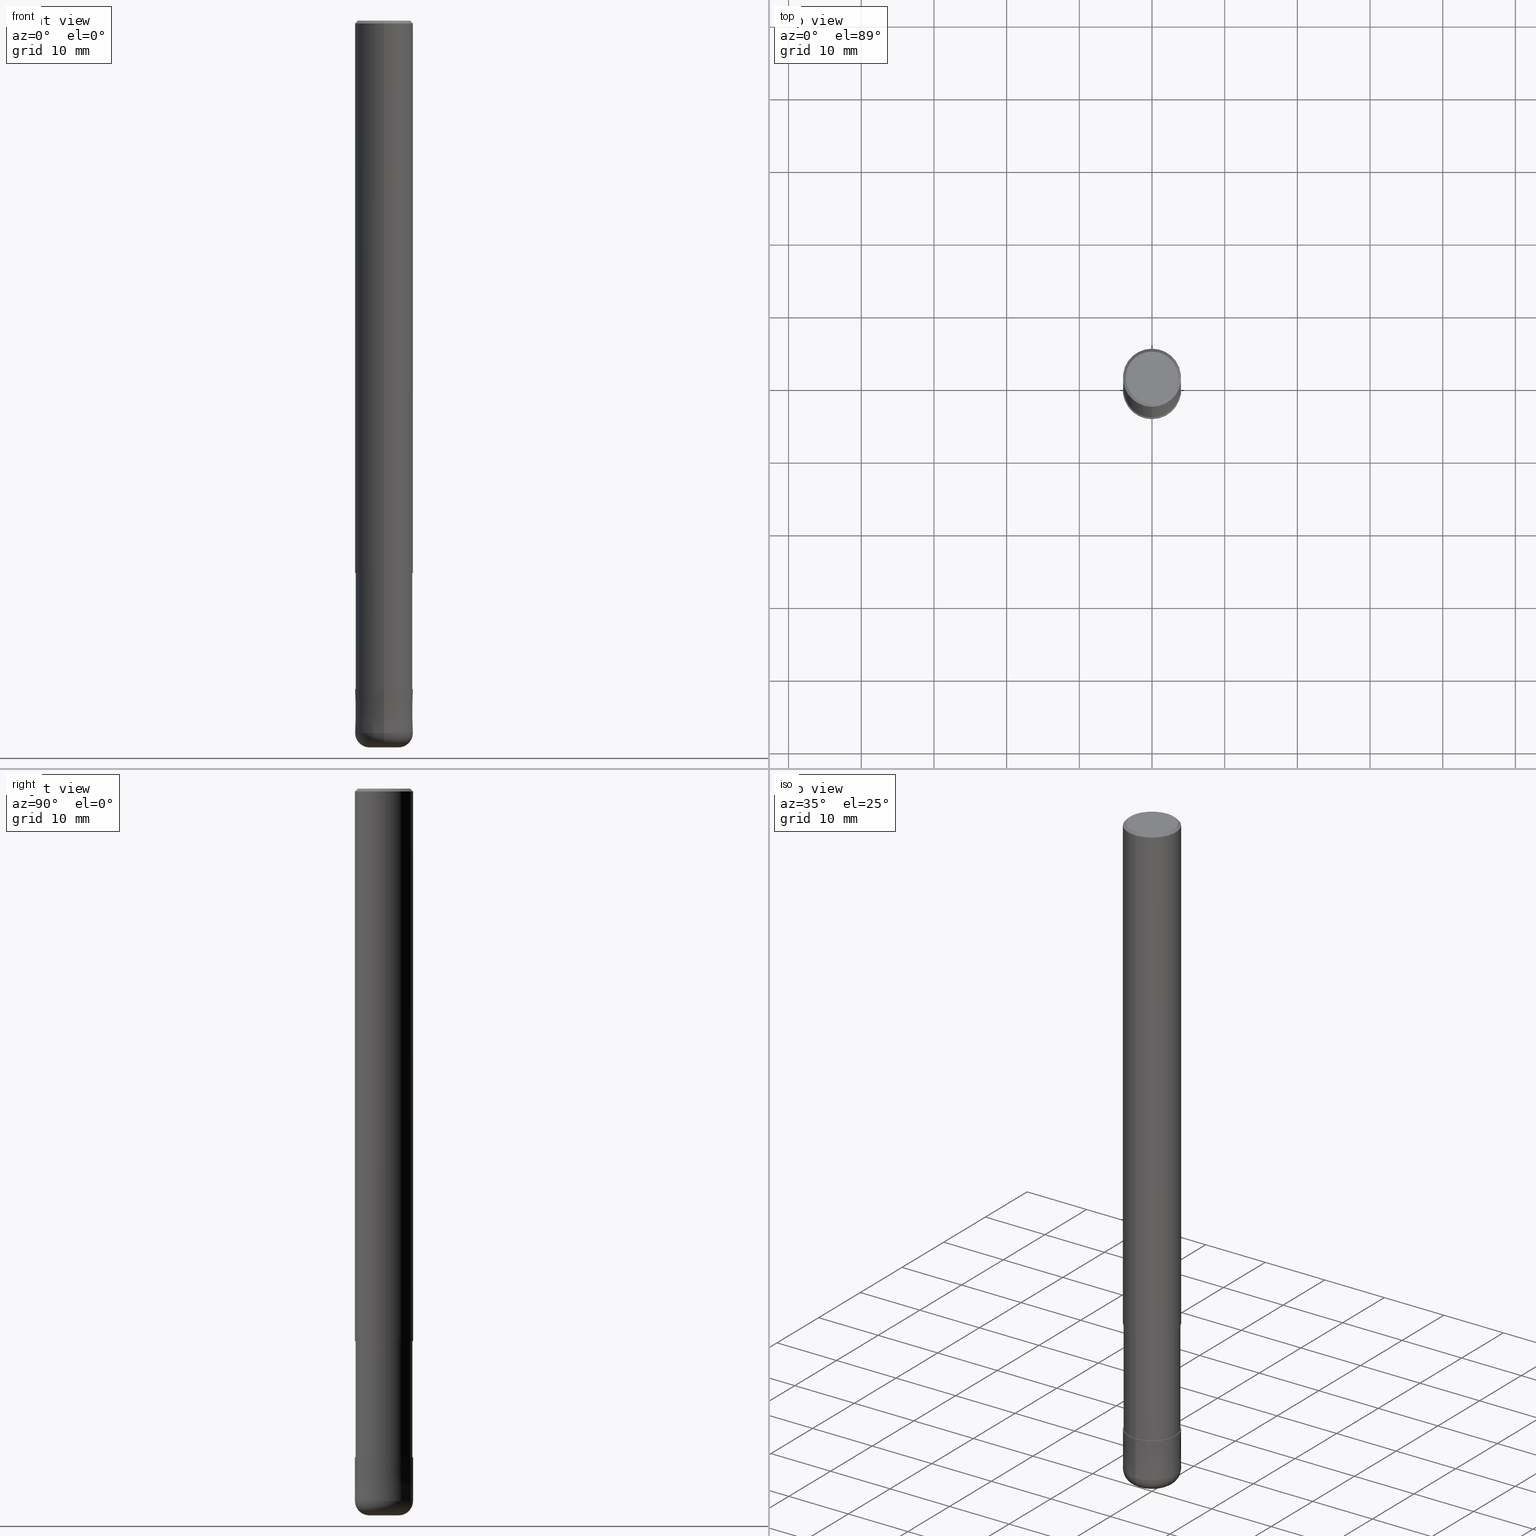
[diagram: canonical four-view strip — front | top / right | iso, engineering-drawing reading convention]
A machine part, canonical four-view strip (front | top / right | iso — engineering-drawing reading convention). The complete STEP part file that produces these views, byte-faithful:
ISO-10303-21;
HEADER;
FILE_DESCRIPTION(('no description'),'unknown implementation level');
FILE_NAME('CRRS4080-20-24-Huellk.stp','  ',('CIMSOURCE GmbH'),('CADClick - KiM GmbH - www.kimweb.de'),'unknown preprocess','ACIS','unknown authorization');
FILE_SCHEMA(('automotive_design'));
ENDSEC;
DATA;
#1=MECHANICAL_DESIGN_GEOMETRIC_PRESENTATION_REPRESENTATION(' ',(#14,#15,#16,#17,#18,#19,#20,#21,#22,#23,#24,#25,#26,#27,#28,#29,#30,#31,#32,#33,#34,#35,#36,#37,#38,#39,#40,#41,#42,#43,#44,#45,#46,#47,#48,#49,#50,#51,#52,#53,#54,#55,#56,#57,#58,#59,#60,#61,#62,#63,#64,#65,#66,#67,#68,#69,#70,#71,#72),#10);
#2=PRODUCT_DEFINITION_CONTEXT('',#73,'design');
#3=APPLICATION_PROTOCOL_DEFINITION('INTERNATIONAL STANDARD','automotive_design',1994,#73);
#4=PRODUCT_CATEGORY_RELATIONSHIP('NONE','NONE',#74,#75);
#5=SHAPE_DEFINITION_REPRESENTATION(#76,#77);
#6=PRODUCT_DEFINITION_CONTEXT('',#78,'design');
#7=APPLICATION_PROTOCOL_DEFINITION('INTERNATIONAL STANDARD','automotive_design',1994,#78);
#8=PRODUCT_CATEGORY_RELATIONSHIP('NONE','NONE',#79,#80);
#9=SHAPE_DEFINITION_REPRESENTATION(#81,#82);
#10= (GEOMETRIC_REPRESENTATION_CONTEXT(3)GLOBAL_UNCERTAINTY_ASSIGNED_CONTEXT((#85))GLOBAL_UNIT_ASSIGNED_CONTEXT((#87,#88,#89))REPRESENTATION_CONTEXT('NONE','WORKSPACE'));
#14=STYLED_ITEM('',(#91),#92);
#15=STYLED_ITEM('',(#93),#94);
#16=STYLED_ITEM('',(#95),#96);
#17=STYLED_ITEM('',(#97),#98);
#18=STYLED_ITEM('',(#99),#100);
#19=STYLED_ITEM('',(#101),#102);
#20=STYLED_ITEM('',(#103),#104);
#21=STYLED_ITEM('',(#105),#106);
#22=STYLED_ITEM('',(#107),#108);
#23=STYLED_ITEM('',(#109),#110);
#24=STYLED_ITEM('',(#111),#112);
#25=STYLED_ITEM('',(#113),#114);
#26=STYLED_ITEM('',(#115),#116);
#27=STYLED_ITEM('',(#117),#118);
#28=STYLED_ITEM('',(#119),#120);
#29=STYLED_ITEM('',(#121),#122);
#30=STYLED_ITEM('',(#123),#124);
#31=STYLED_ITEM('',(#125),#126);
#32=STYLED_ITEM('',(#127),#128);
#33=STYLED_ITEM('',(#129),#130);
#34=STYLED_ITEM('',(#131),#132);
#35=STYLED_ITEM('',(#133),#134);
#36=STYLED_ITEM('',(#135),#136);
#37=STYLED_ITEM('',(#137),#138);
#38=STYLED_ITEM('',(#139),#140);
#39=STYLED_ITEM('',(#141),#142);
#40=STYLED_ITEM('',(#143),#144);
#41=STYLED_ITEM('',(#145),#146);
#42=STYLED_ITEM('',(#147),#148);
#43=STYLED_ITEM('',(#149),#150);
#44=STYLED_ITEM('',(#151),#152);
#45=STYLED_ITEM('',(#153),#154);
#46=STYLED_ITEM('',(#155),#156);
#47=STYLED_ITEM('',(#157),#158);
#48=STYLED_ITEM('',(#159),#160);
#49=STYLED_ITEM('',(#161),#162);
#50=STYLED_ITEM('',(#163),#164);
#51=STYLED_ITEM('',(#165),#166);
#52=STYLED_ITEM('',(#167),#168);
#53=STYLED_ITEM('',(#169),#170);
#54=STYLED_ITEM('',(#171),#172);
#55=STYLED_ITEM('',(#173),#174);
#56=STYLED_ITEM('',(#175),#176);
#57=STYLED_ITEM('',(#177),#178);
#58=STYLED_ITEM('',(#179),#180);
#59=STYLED_ITEM('',(#181),#182);
#60=STYLED_ITEM('',(#183),#184);
#61=STYLED_ITEM('',(#185),#186);
#62=STYLED_ITEM('',(#187),#188);
#63=STYLED_ITEM('',(#189),#190);
#64=STYLED_ITEM('',(#191),#192);
#65=STYLED_ITEM('',(#193),#194);
#66=STYLED_ITEM('',(#195),#196);
#67=STYLED_ITEM('',(#197),#198);
#68=STYLED_ITEM('',(#199),#200);
#69=STYLED_ITEM('',(#201),#202);
#70=STYLED_ITEM('',(#203),#204);
#71=STYLED_ITEM('',(#205),#206);
#72=STYLED_ITEM('',(#207),#208);
#73=APPLICATION_CONTEXT(' ');
#74=PRODUCT_CATEGORY('part','NONE');
#75=PRODUCT_RELATED_PRODUCT_CATEGORY('detail',' ',(#209));
#76=PRODUCT_DEFINITION_SHAPE('NONE','NONE',#210);
#77=ADVANCED_BREP_SHAPE_REPRESENTATION('1',(#194,#211),#10);
#78=APPLICATION_CONTEXT(' ');
#79=PRODUCT_CATEGORY('part','NONE');
#80=PRODUCT_RELATED_PRODUCT_CATEGORY('detail',' ',(#212));
#81=PRODUCT_DEFINITION_SHAPE('NONE','NONE',#213);
#82=ADVANCED_BREP_SHAPE_REPRESENTATION('2',(#108,#214),#10);
#85=UNCERTAINTY_MEASURE_WITH_UNIT(LENGTH_MEASURE(1.0E-006),#87,'','');
#87= (CONVERSION_BASED_UNIT('MILLIMETRE',#217)LENGTH_UNIT()NAMED_UNIT(#220));
#88= (NAMED_UNIT(#222)PLANE_ANGLE_UNIT()SI_UNIT($,.RADIAN.));
#89= (NAMED_UNIT(#222)SOLID_ANGLE_UNIT()SI_UNIT($,.STERADIAN.));
#91=PRESENTATION_STYLE_ASSIGNMENT((#228));
#92=VERTEX_POINT('',#229);
#93=PRESENTATION_STYLE_ASSIGNMENT((#230));
#94=EDGE_CURVE('',#158,#198,#231,.T.);
#95=PRESENTATION_STYLE_ASSIGNMENT((#232));
#96=VERTEX_POINT('',#233);
#97=PRESENTATION_STYLE_ASSIGNMENT((#234));
#98=EDGE_CURVE('',#96,#198,#235,.T.);
#99=PRESENTATION_STYLE_ASSIGNMENT((#236));
#100=EDGE_CURVE('',#158,#152,#237,.T.);
#101=PRESENTATION_STYLE_ASSIGNMENT((#238));
#102=EDGE_CURVE('',#162,#178,#239,.T.);
#103=PRESENTATION_STYLE_ASSIGNMENT((#240));
#104=ADVANCED_FACE('',(#241),#242,.T.);
#105=PRESENTATION_STYLE_ASSIGNMENT((#243));
#106=ADVANCED_FACE('',(#244),#245,.T.);
#107=PRESENTATION_STYLE_ASSIGNMENT((#246));
#108=MANIFOLD_SOLID_BREP('2',#247);
#109=PRESENTATION_STYLE_ASSIGNMENT((#248));
#110=ADVANCED_FACE('',(#249),#250,.T.);
#111=PRESENTATION_STYLE_ASSIGNMENT((#251));
#112=ADVANCED_FACE('',(#252),#253,.T.);
#113=PRESENTATION_STYLE_ASSIGNMENT((#254));
#114=EDGE_CURVE('',#152,#96,#255,.T.);
#115=PRESENTATION_STYLE_ASSIGNMENT((#256));
#116=EDGE_CURVE('',#124,#176,#257,.T.);
#117=PRESENTATION_STYLE_ASSIGNMENT((#258));
#118=ADVANCED_FACE('',(#259),#260,.T.);
#119=PRESENTATION_STYLE_ASSIGNMENT((#261));
#120=ADVANCED_FACE('',(#262),#263,.T.);
#121=PRESENTATION_STYLE_ASSIGNMENT((#264));
#122=VERTEX_POINT('',#265);
#123=PRESENTATION_STYLE_ASSIGNMENT((#266));
#124=VERTEX_POINT('',#267);
#125=PRESENTATION_STYLE_ASSIGNMENT((#268));
#126=EDGE_CURVE('',#92,#176,#269,.T.);
#127=PRESENTATION_STYLE_ASSIGNMENT((#270));
#128=EDGE_CURVE('',#124,#192,#271,.T.);
#129=PRESENTATION_STYLE_ASSIGNMENT((#272));
#130=EDGE_CURVE('',#184,#122,#273,.T.);
#131=PRESENTATION_STYLE_ASSIGNMENT((#274));
#132=EDGE_CURVE('',#192,#92,#275,.T.);
#133=PRESENTATION_STYLE_ASSIGNMENT((#276));
#134=EDGE_CURVE('',#124,#196,#277,.T.);
#135=PRESENTATION_STYLE_ASSIGNMENT((#278));
#136=EDGE_CURVE('',#196,#150,#279,.T.);
#137=PRESENTATION_STYLE_ASSIGNMENT((#280));
#138=EDGE_CURVE('',#142,#158,#281,.T.);
#139=PRESENTATION_STYLE_ASSIGNMENT((#282));
#140=ADVANCED_FACE('',(#283),#284,.T.);
#141=PRESENTATION_STYLE_ASSIGNMENT((#285));
#142=VERTEX_POINT('',#286);
#143=PRESENTATION_STYLE_ASSIGNMENT((#287));
#144=VERTEX_POINT('',#288);
#145=PRESENTATION_STYLE_ASSIGNMENT((#289));
#146=EDGE_CURVE('',#122,#184,#290,.T.);
#147=PRESENTATION_STYLE_ASSIGNMENT((#291));
#148=EDGE_CURVE('',#162,#184,#292,.T.);
#149=PRESENTATION_STYLE_ASSIGNMENT((#293));
#150=VERTEX_POINT('',#294);
#151=PRESENTATION_STYLE_ASSIGNMENT((#295));
#152=VERTEX_POINT('',#296);
#153=PRESENTATION_STYLE_ASSIGNMENT((#297));
#154=EDGE_CURVE('',#176,#124,#298,.T.);
#155=PRESENTATION_STYLE_ASSIGNMENT((#299));
#156=EDGE_CURVE('',#198,#144,#300,.T.);
#157=PRESENTATION_STYLE_ASSIGNMENT((#301));
#158=VERTEX_POINT('',#302);
#159=PRESENTATION_STYLE_ASSIGNMENT((#303));
#160=ADVANCED_FACE('',(#304),#305,.T.);
#161=PRESENTATION_STYLE_ASSIGNMENT((#306));
#162=VERTEX_POINT('',#307);
#163=PRESENTATION_STYLE_ASSIGNMENT((#308));
#164=EDGE_CURVE('',#142,#144,#309,.T.);
#165=PRESENTATION_STYLE_ASSIGNMENT((#310));
#166=EDGE_CURVE('',#92,#192,#311,.T.);
#167=PRESENTATION_STYLE_ASSIGNMENT((#312));
#168=EDGE_CURVE('',#198,#158,#313,.T.);
#169=PRESENTATION_STYLE_ASSIGNMENT((#314));
#170=ADVANCED_FACE('',(#315),#316,.T.);
#171=PRESENTATION_STYLE_ASSIGNMENT((#317));
#172=EDGE_CURVE('',#150,#176,#318,.T.);
#173=PRESENTATION_STYLE_ASSIGNMENT((#319));
#174=EDGE_CURVE('',#178,#162,#320,.T.);
#175=PRESENTATION_STYLE_ASSIGNMENT((#321));
#176=VERTEX_POINT('',#322);
#177=PRESENTATION_STYLE_ASSIGNMENT((#323));
#178=VERTEX_POINT('',#324);
#179=PRESENTATION_STYLE_ASSIGNMENT((#325));
#180=EDGE_CURVE('',#122,#178,#326,.T.);
#181=PRESENTATION_STYLE_ASSIGNMENT((#327));
#182=ADVANCED_FACE('',(#328),#329,.T.);
#183=PRESENTATION_STYLE_ASSIGNMENT((#330));
#184=VERTEX_POINT('',#331);
#185=PRESENTATION_STYLE_ASSIGNMENT((#332));
#186=EDGE_CURVE('',#96,#152,#333,.T.);
#187=PRESENTATION_STYLE_ASSIGNMENT((#334));
#188=ADVANCED_FACE('',(#335),#336,.T.);
#189=PRESENTATION_STYLE_ASSIGNMENT((#337));
#190=ADVANCED_FACE('',(#338),#339,.T.);
#191=PRESENTATION_STYLE_ASSIGNMENT((#340));
#192=VERTEX_POINT('',#341);
#193=PRESENTATION_STYLE_ASSIGNMENT((#342));
#194=MANIFOLD_SOLID_BREP('1',#343);
#195=PRESENTATION_STYLE_ASSIGNMENT((#344));
#196=VERTEX_POINT('',#345);
#197=PRESENTATION_STYLE_ASSIGNMENT((#346));
#198=VERTEX_POINT('',#347);
#199=PRESENTATION_STYLE_ASSIGNMENT((#348));
#200=EDGE_CURVE('',#150,#196,#349,.T.);
#201=PRESENTATION_STYLE_ASSIGNMENT((#350));
#202=ADVANCED_FACE('',(#351),#352,.T.);
#203=PRESENTATION_STYLE_ASSIGNMENT((#353));
#204=ADVANCED_FACE('',(#354),#355,.T.);
#205=PRESENTATION_STYLE_ASSIGNMENT((#356));
#206=EDGE_CURVE('',#144,#142,#357,.T.);
#207=PRESENTATION_STYLE_ASSIGNMENT((#358));
#208=ADVANCED_FACE('',(#359,#360),#361,.T.);
#209=PRODUCT('1','1','PART-1-DESC',(#362));
#210=PRODUCT_DEFINITION('NONE','NONE',#363,#2);
#211=AXIS2_PLACEMENT_3D('',#364,#365,#366);
#212=PRODUCT('2','2','PART-2-DESC',(#367));
#213=PRODUCT_DEFINITION('NONE','NONE',#368,#6);
#214=AXIS2_PLACEMENT_3D('',#369,#370,#371);
#217=LENGTH_MEASURE_WITH_UNIT(LENGTH_MEASURE(1.0),#372);
#220=DIMENSIONAL_EXPONENTS(1.0,0.0,0.0,0.0,0.0,0.0,0.0);
#222=DIMENSIONAL_EXPONENTS(0.0,0.0,0.0,0.0,0.0,0.0,0.0);
#228=POINT_STYLE(' ',#373,POSITIVE_LENGTH_MEASURE(1.0E-006),#374);
#229=CARTESIAN_POINT('',(0.0,3.9999,-92.0));
#230=CURVE_STYLE('',#375,POSITIVE_LENGTH_MEASURE(1.0E-006),#376);
#231=CIRCLE('',#377,4.0);
#232=POINT_STYLE(' ',#378,POSITIVE_LENGTH_MEASURE(1.0E-006),#379);
#233=CARTESIAN_POINT('',(0.0,3.6,0.0));
#234=CURVE_STYLE('',#380,POSITIVE_LENGTH_MEASURE(1.0E-006),#381);
#235=LINE('',#382,#383);
#236=CURVE_STYLE('',#384,POSITIVE_LENGTH_MEASURE(1.0E-006),#385);
#237=LINE('',#386,#387);
#238=CURVE_STYLE('',#388,POSITIVE_LENGTH_MEASURE(1.0E-006),#389);
#239=CIRCLE('',#390,3.90995);
#240=SURFACE_STYLE_USAGE(.BOTH.,#391);
#241=FACE_OUTER_BOUND('',#392,.T.);
#242=CONICAL_SURFACE('',#393,3.8,0.785398163397441);
#243=SURFACE_STYLE_USAGE(.BOTH.,#394);
#244=FACE_OUTER_BOUND('',#395,.T.);
#245=TOROIDAL_SURFACE('',#396,2.0,2.0);
#246=SURFACE_STYLE_USAGE(.BOTH.,#397);
#247=CLOSED_SHELL('',(#106,#118,#188,#120,#112,#190));
#248=SURFACE_STYLE_USAGE(.BOTH.,#398);
#249=FACE_OUTER_BOUND('',#399,.T.);
#250=CYLINDRICAL_SURFACE('',#400,3.90995);
#251=SURFACE_STYLE_USAGE(.BOTH.,#401);
#252=FACE_OUTER_BOUND('',#402,.T.);
#253=TOROIDAL_SURFACE('',#403,2.0,2.0);
#254=CURVE_STYLE('',#404,POSITIVE_LENGTH_MEASURE(1.0E-006),#405);
#255=CIRCLE('',#406,3.6);
#256=CURVE_STYLE('',#407,POSITIVE_LENGTH_MEASURE(1.0E-006),#408);
#257=CIRCLE('',#409,4.0);
#258=SURFACE_STYLE_USAGE(.BOTH.,#410);
#259=FACE_OUTER_BOUND('',#411,.T.);
#260=CONICAL_SURFACE('',#412,3.99995,1.66666666651586E-005);
#261=SURFACE_STYLE_USAGE(.BOTH.,#413);
#262=FACE_OUTER_BOUND('',#414,.T.);
#263=CONICAL_SURFACE('',#415,3.99995,1.66666666651586E-005);
#264=POINT_STYLE(' ',#416,POSITIVE_LENGTH_MEASURE(1.0E-006),#417);
#265=CARTESIAN_POINT('',(4.7881496131278E-016,-3.90995,-92.0));
#266=POINT_STYLE(' ',#418,POSITIVE_LENGTH_MEASURE(1.0E-006),#419);
#267=CARTESIAN_POINT('',(4.89842541528951E-016,-4.0,-98.0));
#268=CURVE_STYLE('',#420,POSITIVE_LENGTH_MEASURE(1.0E-006),#421);
#269=LINE('',#422,#423);
#270=CURVE_STYLE('',#424,POSITIVE_LENGTH_MEASURE(1.0E-006),#425);
#271=LINE('',#426,#427);
#272=CURVE_STYLE('',#428,POSITIVE_LENGTH_MEASURE(1.0E-006),#429);
#273=CIRCLE('',#430,3.90995);
#274=CURVE_STYLE('',#431,POSITIVE_LENGTH_MEASURE(1.0E-006),#432);
#275=CIRCLE('',#433,3.9999);
#276=CURVE_STYLE('',#434,POSITIVE_LENGTH_MEASURE(1.0E-006),#435);
#277=CIRCLE('',#436,2.0);
#278=CURVE_STYLE('',#437,POSITIVE_LENGTH_MEASURE(1.0E-006),#438);
#279=CIRCLE('',#439,2.0);
#280=CURVE_STYLE('',#440,POSITIVE_LENGTH_MEASURE(1.0E-006),#441);
#281=LINE('',#442,#443);
#282=SURFACE_STYLE_USAGE(.BOTH.,#444);
#283=FACE_OUTER_BOUND('',#445,.T.);
#284=CYLINDRICAL_SURFACE('',#446,4.0);
#285=POINT_STYLE(' ',#447,POSITIVE_LENGTH_MEASURE(1.0E-006),#448);
#286=CARTESIAN_POINT('',(4.89842541528951E-016,-4.0,-76.0));
#287=POINT_STYLE(' ',#449,POSITIVE_LENGTH_MEASURE(1.0E-006),#450);
#288=CARTESIAN_POINT('',(0.0,4.0,-76.0));
#289=CURVE_STYLE('',#451,POSITIVE_LENGTH_MEASURE(1.0E-006),#452);
#290=CIRCLE('',#453,3.90995);
#291=CURVE_STYLE('',#454,POSITIVE_LENGTH_MEASURE(1.0E-006),#455);
#292=LINE('',#456,#457);
#293=POINT_STYLE(' ',#458,POSITIVE_LENGTH_MEASURE(1.0E-006),#459);
#294=CARTESIAN_POINT('',(0.0,2.0,-100.0));
#295=POINT_STYLE(' ',#460,POSITIVE_LENGTH_MEASURE(1.0E-006),#461);
#296=CARTESIAN_POINT('',(4.40858287376056E-016,-3.6,0.0));
#297=CURVE_STYLE('',#462,POSITIVE_LENGTH_MEASURE(1.0E-006),#463);
#298=CIRCLE('',#464,4.0);
#299=CURVE_STYLE('',#465,POSITIVE_LENGTH_MEASURE(1.0E-006),#466);
#300=LINE('',#467,#468);
#301=POINT_STYLE(' ',#469,POSITIVE_LENGTH_MEASURE(1.0E-006),#470);
#302=CARTESIAN_POINT('',(4.89842541528951E-016,-4.0,-0.400000000000006));
#303=SURFACE_STYLE_USAGE(.BOTH.,#471);
#304=FACE_OUTER_BOUND('',#472,.T.);
#305=CYLINDRICAL_SURFACE('',#473,4.0);
#306=POINT_STYLE(' ',#474,POSITIVE_LENGTH_MEASURE(1.0E-006),#475);
#307=CARTESIAN_POINT('',(0.0,3.90995,-76.0));
#308=CURVE_STYLE('',#476,POSITIVE_LENGTH_MEASURE(1.0E-006),#477);
#309=CIRCLE('',#478,4.0);
#310=CURVE_STYLE('',#479,POSITIVE_LENGTH_MEASURE(1.0E-006),#480);
#311=CIRCLE('',#481,3.9999);
#312=CURVE_STYLE('',#482,POSITIVE_LENGTH_MEASURE(1.0E-006),#483);
#313=CIRCLE('',#484,4.0);
#314=SURFACE_STYLE_USAGE(.BOTH.,#485);
#315=FACE_OUTER_BOUND('',#486,.T.);
#316=PLANE('',#487);
#317=CURVE_STYLE('',#488,POSITIVE_LENGTH_MEASURE(1.0E-006),#489);
#318=CIRCLE('',#490,2.0);
#319=CURVE_STYLE('',#491,POSITIVE_LENGTH_MEASURE(1.0E-006),#492);
#320=CIRCLE('',#493,3.90995);
#321=POINT_STYLE(' ',#494,POSITIVE_LENGTH_MEASURE(1.0E-006),#495);
#322=CARTESIAN_POINT('',(0.0,4.0,-98.0));
#323=POINT_STYLE(' ',#496,POSITIVE_LENGTH_MEASURE(1.0E-006),#497);
#324=CARTESIAN_POINT('',(4.7881496131278E-016,-3.90995,-76.0));
#325=CURVE_STYLE('',#498,POSITIVE_LENGTH_MEASURE(1.0E-006),#499);
#326=LINE('',#500,#501);
#327=SURFACE_STYLE_USAGE(.BOTH.,#502);
#328=FACE_OUTER_BOUND('',#503,.T.);
#329=CYLINDRICAL_SURFACE('',#504,3.90995);
#330=POINT_STYLE(' ',#505,POSITIVE_LENGTH_MEASURE(1.0E-006),#506);
#331=CARTESIAN_POINT('',(0.0,3.90995,-92.0));
#332=CURVE_STYLE('',#507,POSITIVE_LENGTH_MEASURE(1.0E-006),#508);
#333=CIRCLE('',#509,3.6);
#334=SURFACE_STYLE_USAGE(.BOTH.,#510);
#335=FACE_OUTER_BOUND('',#511,.T.);
#336=PLANE('',#512);
#337=SURFACE_STYLE_USAGE(.BOTH.,#513);
#338=FACE_OUTER_BOUND('',#514,.T.);
#339=PLANE('',#515);
#340=POINT_STYLE(' ',#516,POSITIVE_LENGTH_MEASURE(1.0E-006),#517);
#341=CARTESIAN_POINT('',(4.89830295465413E-016,-3.9999,-92.0));
#342=SURFACE_STYLE_USAGE(.BOTH.,#518);
#343=CLOSED_SHELL('',(#110,#140,#104,#208,#202,#204,#160,#182,#170));
#344=POINT_STYLE(' ',#519,POSITIVE_LENGTH_MEASURE(1.0E-006),#520);
#345=CARTESIAN_POINT('',(2.44921270764475E-016,-2.0,-100.0));
#346=POINT_STYLE(' ',#521,POSITIVE_LENGTH_MEASURE(1.0E-006),#522);
#347=CARTESIAN_POINT('',(0.0,4.0,-0.400000000000006));
#348=CURVE_STYLE('',#523,POSITIVE_LENGTH_MEASURE(1.0E-006),#524);
#349=CIRCLE('',#525,2.0);
#350=SURFACE_STYLE_USAGE(.BOTH.,#526);
#351=FACE_OUTER_BOUND('',#527,.T.);
#352=PLANE('',#528);
#353=SURFACE_STYLE_USAGE(.BOTH.,#529);
#354=FACE_OUTER_BOUND('',#530,.T.);
#355=CONICAL_SURFACE('',#531,3.8,0.785398163397441);
#356=CURVE_STYLE('',#532,POSITIVE_LENGTH_MEASURE(1.0E-006),#533);
#357=CIRCLE('',#534,4.0);
#358=SURFACE_STYLE_USAGE(.BOTH.,#535);
#359=FACE_OUTER_BOUND('',#536,.T.);
#360=FACE_BOUND('',#537,.T.);
#361=PLANE('',#538);
#362=PRODUCT_CONTEXT('',#73,'mechanical');
#363=PRODUCT_DEFINITION_FORMATION_WITH_SPECIFIED_SOURCE(' ','NONE',#209,.NOT_KNOWN.);
#364=CARTESIAN_POINT('',(0.0,0.0,0.0));
#365=DIRECTION('',(0.0,0.0,1.0));
#366=DIRECTION('',(1.0,0.0,0.0));
#367=PRODUCT_CONTEXT('',#78,'mechanical');
#368=PRODUCT_DEFINITION_FORMATION_WITH_SPECIFIED_SOURCE(' ','NONE',#212,.NOT_KNOWN.);
#369=CARTESIAN_POINT('',(0.0,0.0,0.0));
#370=DIRECTION('',(0.0,0.0,1.0));
#371=DIRECTION('',(1.0,0.0,0.0));
#372= (NAMED_UNIT(#220)LENGTH_UNIT()SI_UNIT(.MILLI.,.METRE.));
#373=PRE_DEFINED_MARKER('');
#374=COLOUR_RGB('',0.800000011920929,0.800000011920929,0.800000011920929);
#375=DRAUGHTING_PRE_DEFINED_CURVE_FONT('continuous');
#376=COLOUR_RGB('',0.498039215803146,0.498039215803146,0.498039215803146);
#377=AXIS2_PLACEMENT_3D('',#540,#541,#542);
#378=PRE_DEFINED_MARKER('');
#379=COLOUR_RGB('',0.498039215803146,0.498039215803146,0.498039215803146);
#380=DRAUGHTING_PRE_DEFINED_CURVE_FONT('continuous');
#381=COLOUR_RGB('',0.498039215803146,0.498039215803146,0.498039215803146);
#382=CARTESIAN_POINT('',(-4.65350414452503E-016,3.8,-0.200000000000003));
#383=VECTOR('',#543,1.0);
#384=DRAUGHTING_PRE_DEFINED_CURVE_FONT('continuous');
#385=COLOUR_RGB('',0.498039215803146,0.498039215803146,0.498039215803146);
#386=CARTESIAN_POINT('',(4.65350414452503E-016,-3.8,-0.200000000000003));
#387=VECTOR('',#544,1.0);
#388=DRAUGHTING_PRE_DEFINED_CURVE_FONT('continuous');
#389=COLOUR_RGB('',0.498039215803146,0.498039215803146,0.498039215803146);
#390=AXIS2_PLACEMENT_3D('',#545,#546,#547);
#391=SURFACE_SIDE_STYLE('',(#548));
#392=EDGE_LOOP('',(#549,#550,#551,#552));
#393=AXIS2_PLACEMENT_3D('',#553,#554,#555);
#394=SURFACE_SIDE_STYLE('',(#556));
#395=EDGE_LOOP('',(#557,#558,#559,#560));
#396=AXIS2_PLACEMENT_3D('',#561,#562,#563);
#397=SURFACE_SIDE_STYLE('',(#564));
#398=SURFACE_SIDE_STYLE('',(#565));
#399=EDGE_LOOP('',(#566,#567,#568,#569));
#400=AXIS2_PLACEMENT_3D('',#570,#571,#572);
#401=SURFACE_SIDE_STYLE('',(#573));
#402=EDGE_LOOP('',(#574,#575,#576,#577));
#403=AXIS2_PLACEMENT_3D('',#578,#579,#580);
#404=DRAUGHTING_PRE_DEFINED_CURVE_FONT('continuous');
#405=COLOUR_RGB('',0.498039215803146,0.498039215803146,0.498039215803146);
#406=AXIS2_PLACEMENT_3D('',#581,#582,#583);
#407=DRAUGHTING_PRE_DEFINED_CURVE_FONT('continuous');
#408=COLOUR_RGB('',0.800000011920929,0.800000011920929,0.800000011920929);
#409=AXIS2_PLACEMENT_3D('',#584,#585,#586);
#410=SURFACE_SIDE_STYLE('',(#587));
#411=EDGE_LOOP('',(#588,#589,#590,#591));
#412=AXIS2_PLACEMENT_3D('',#592,#593,#594);
#413=SURFACE_SIDE_STYLE('',(#595));
#414=EDGE_LOOP('',(#596,#597,#598,#599));
#415=AXIS2_PLACEMENT_3D('',#600,#601,#602);
#416=PRE_DEFINED_MARKER('');
#417=COLOUR_RGB('',0.498039215803146,0.498039215803146,0.498039215803146);
#418=PRE_DEFINED_MARKER('');
#419=COLOUR_RGB('',0.800000011920929,0.800000011920929,0.800000011920929);
#420=DRAUGHTING_PRE_DEFINED_CURVE_FONT('continuous');
#421=COLOUR_RGB('',0.800000011920929,0.800000011920929,0.800000011920929);
#422=CARTESIAN_POINT('',(-4.89836418497182E-016,3.99995,-95.0));
#423=VECTOR('',#603,1.0);
#424=DRAUGHTING_PRE_DEFINED_CURVE_FONT('continuous');
#425=COLOUR_RGB('',0.800000011920929,0.800000011920929,0.800000011920929);
#426=CARTESIAN_POINT('',(4.89836418497182E-016,-3.99995,-95.0));
#427=VECTOR('',#604,1.0);
#428=DRAUGHTING_PRE_DEFINED_CURVE_FONT('continuous');
#429=COLOUR_RGB('',0.498039215803146,0.498039215803146,0.498039215803146);
#430=AXIS2_PLACEMENT_3D('',#605,#606,#607);
#431=DRAUGHTING_PRE_DEFINED_CURVE_FONT('continuous');
#432=COLOUR_RGB('',0.800000011920929,0.800000011920929,0.800000011920929);
#433=AXIS2_PLACEMENT_3D('',#608,#609,#610);
#434=DRAUGHTING_PRE_DEFINED_CURVE_FONT('continuous');
#435=COLOUR_RGB('',0.800000011920929,0.800000011920929,0.800000011920929);
#436=AXIS2_PLACEMENT_3D('',#611,#612,#613);
#437=DRAUGHTING_PRE_DEFINED_CURVE_FONT('continuous');
#438=COLOUR_RGB('',0.800000011920929,0.800000011920929,0.800000011920929);
#439=AXIS2_PLACEMENT_3D('',#614,#615,#616);
#440=DRAUGHTING_PRE_DEFINED_CURVE_FONT('continuous');
#441=COLOUR_RGB('',0.498039215803146,0.498039215803146,0.498039215803146);
#442=CARTESIAN_POINT('',(4.89842541528951E-016,-4.0,-38.2));
#443=VECTOR('',#617,1.0);
#444=SURFACE_SIDE_STYLE('',(#618));
#445=EDGE_LOOP('',(#619,#620,#621,#622));
#446=AXIS2_PLACEMENT_3D('',#623,#624,#625);
#447=PRE_DEFINED_MARKER('');
#448=COLOUR_RGB('',0.498039215803146,0.498039215803146,0.498039215803146);
#449=PRE_DEFINED_MARKER('');
#450=COLOUR_RGB('',0.498039215803146,0.498039215803146,0.498039215803146);
#451=DRAUGHTING_PRE_DEFINED_CURVE_FONT('continuous');
#452=COLOUR_RGB('',0.498039215803146,0.498039215803146,0.498039215803146);
#453=AXIS2_PLACEMENT_3D('',#626,#627,#628);
#454=DRAUGHTING_PRE_DEFINED_CURVE_FONT('continuous');
#455=COLOUR_RGB('',0.498039215803146,0.498039215803146,0.498039215803146);
#456=CARTESIAN_POINT('',(-4.7881496131278E-016,3.90995,-84.0));
#457=VECTOR('',#629,1.0);
#458=PRE_DEFINED_MARKER('');
#459=COLOUR_RGB('',0.800000011920929,0.800000011920929,0.800000011920929);
#460=PRE_DEFINED_MARKER('');
#461=COLOUR_RGB('',0.498039215803146,0.498039215803146,0.498039215803146);
#462=DRAUGHTING_PRE_DEFINED_CURVE_FONT('continuous');
#463=COLOUR_RGB('',0.800000011920929,0.800000011920929,0.800000011920929);
#464=AXIS2_PLACEMENT_3D('',#630,#631,#632);
#465=DRAUGHTING_PRE_DEFINED_CURVE_FONT('continuous');
#466=COLOUR_RGB('',0.498039215803146,0.498039215803146,0.498039215803146);
#467=CARTESIAN_POINT('',(-4.89842541528951E-016,4.0,-38.2));
#468=VECTOR('',#633,1.0);
#469=PRE_DEFINED_MARKER('');
#470=COLOUR_RGB('',0.498039215803146,0.498039215803146,0.498039215803146);
#471=SURFACE_SIDE_STYLE('',(#634));
#472=EDGE_LOOP('',(#635,#636,#637,#638));
#473=AXIS2_PLACEMENT_3D('',#639,#640,#641);
#474=PRE_DEFINED_MARKER('');
#475=COLOUR_RGB('',0.498039215803146,0.498039215803146,0.498039215803146);
#476=DRAUGHTING_PRE_DEFINED_CURVE_FONT('continuous');
#477=COLOUR_RGB('',0.498039215803146,0.498039215803146,0.498039215803146);
#478=AXIS2_PLACEMENT_3D('',#642,#643,#644);
#479=DRAUGHTING_PRE_DEFINED_CURVE_FONT('continuous');
#480=COLOUR_RGB('',0.800000011920929,0.800000011920929,0.800000011920929);
#481=AXIS2_PLACEMENT_3D('',#645,#646,#647);
#482=DRAUGHTING_PRE_DEFINED_CURVE_FONT('continuous');
#483=COLOUR_RGB('',0.498039215803146,0.498039215803146,0.498039215803146);
#484=AXIS2_PLACEMENT_3D('',#648,#649,#650);
#485=SURFACE_SIDE_STYLE('',(#651));
#486=EDGE_LOOP('',(#652,#653));
#487=AXIS2_PLACEMENT_3D('',#654,#655,#656);
#488=DRAUGHTING_PRE_DEFINED_CURVE_FONT('continuous');
#489=COLOUR_RGB('',0.800000011920929,0.800000011920929,0.800000011920929);
#490=AXIS2_PLACEMENT_3D('',#657,#658,#659);
#491=DRAUGHTING_PRE_DEFINED_CURVE_FONT('continuous');
#492=COLOUR_RGB('',0.498039215803146,0.498039215803146,0.498039215803146);
#493=AXIS2_PLACEMENT_3D('',#660,#661,#662);
#494=PRE_DEFINED_MARKER('');
#495=COLOUR_RGB('',0.800000011920929,0.800000011920929,0.800000011920929);
#496=PRE_DEFINED_MARKER('');
#497=COLOUR_RGB('',0.498039215803146,0.498039215803146,0.498039215803146);
#498=DRAUGHTING_PRE_DEFINED_CURVE_FONT('continuous');
#499=COLOUR_RGB('',0.498039215803146,0.498039215803146,0.498039215803146);
#500=CARTESIAN_POINT('',(4.7881496131278E-016,-3.90995,-84.0));
#501=VECTOR('',#663,1.0);
#502=SURFACE_SIDE_STYLE('',(#664));
#503=EDGE_LOOP('',(#665,#666,#667,#668));
#504=AXIS2_PLACEMENT_3D('',#669,#670,#671);
#505=PRE_DEFINED_MARKER('');
#506=COLOUR_RGB('',0.498039215803146,0.498039215803146,0.498039215803146);
#507=DRAUGHTING_PRE_DEFINED_CURVE_FONT('continuous');
#508=COLOUR_RGB('',0.498039215803146,0.498039215803146,0.498039215803146);
#509=AXIS2_PLACEMENT_3D('',#672,#673,#674);
#510=SURFACE_SIDE_STYLE('',(#675));
#511=EDGE_LOOP('',(#676,#677));
#512=AXIS2_PLACEMENT_3D('',#678,#679,#680);
#513=SURFACE_SIDE_STYLE('',(#681));
#514=EDGE_LOOP('',(#682,#683));
#515=AXIS2_PLACEMENT_3D('',#684,#685,#686);
#516=PRE_DEFINED_MARKER('');
#517=COLOUR_RGB('',0.800000011920929,0.800000011920929,0.800000011920929);
#518=SURFACE_SIDE_STYLE('',(#687));
#519=PRE_DEFINED_MARKER('');
#520=COLOUR_RGB('',0.800000011920929,0.800000011920929,0.800000011920929);
#521=PRE_DEFINED_MARKER('');
#522=COLOUR_RGB('',0.498039215803146,0.498039215803146,0.498039215803146);
#523=DRAUGHTING_PRE_DEFINED_CURVE_FONT('continuous');
#524=COLOUR_RGB('',0.800000011920929,0.800000011920929,0.800000011920929);
#525=AXIS2_PLACEMENT_3D('',#688,#689,#690);
#526=SURFACE_SIDE_STYLE('',(#691));
#527=EDGE_LOOP('',(#692,#693));
#528=AXIS2_PLACEMENT_3D('',#694,#695,#696);
#529=SURFACE_SIDE_STYLE('',(#697));
#530=EDGE_LOOP('',(#698,#699,#700,#701));
#531=AXIS2_PLACEMENT_3D('',#702,#703,#704);
#532=DRAUGHTING_PRE_DEFINED_CURVE_FONT('continuous');
#533=COLOUR_RGB('',0.498039215803146,0.498039215803146,0.498039215803146);
#534=AXIS2_PLACEMENT_3D('',#705,#706,#707);
#535=SURFACE_SIDE_STYLE('',(#708));
#536=EDGE_LOOP('',(#709,#710));
#537=EDGE_LOOP('',(#711,#712));
#538=AXIS2_PLACEMENT_3D('',#713,#714,#715);
#540=CARTESIAN_POINT('',(0.0,0.0,-0.400000000000006));
#541=DIRECTION('',(0.0,0.0,-1.0));
#542=DIRECTION('',(0.0,1.0,0.0));
#543=DIRECTION('',(-8.65927457071929E-017,0.707106781186542,-0.707106781186553));
#544=DIRECTION('',(-8.65927457071929E-017,0.707106781186542,0.707106781186553));
#545=CARTESIAN_POINT('',(0.0,0.0,-76.0));
#546=DIRECTION('',(0.0,0.0,-1.0));
#547=DIRECTION('',(0.0,1.0,0.0));
#548=SURFACE_STYLE_FILL_AREA(#716);
#549=ORIENTED_EDGE('',*,*,#98,.F.);
#550=ORIENTED_EDGE('',*,*,#186,.T.);
#551=ORIENTED_EDGE('',*,*,#100,.F.);
#552=ORIENTED_EDGE('',*,*,#168,.F.);
#553=CARTESIAN_POINT('',(0.0,0.0,-0.200000000000003));
#554=DIRECTION('',(0.0,-0.0,-1.0));
#555=DIRECTION('',(0.0,1.0,0.0));
#556=SURFACE_STYLE_FILL_AREA(#717);
#557=ORIENTED_EDGE('',*,*,#134,.F.);
#558=ORIENTED_EDGE('',*,*,#116,.T.);
#559=ORIENTED_EDGE('',*,*,#172,.F.);
#560=ORIENTED_EDGE('',*,*,#136,.F.);
#561=CARTESIAN_POINT('',(0.0,0.0,-98.0));
#562=DIRECTION('',(0.0,0.0,-1.0));
#563=DIRECTION('',(0.0,-1.0,0.0));
#564=SURFACE_STYLE_FILL_AREA(#718);
#565=SURFACE_STYLE_FILL_AREA(#719);
#566=ORIENTED_EDGE('',*,*,#148,.F.);
#567=ORIENTED_EDGE('',*,*,#102,.T.);
#568=ORIENTED_EDGE('',*,*,#180,.F.);
#569=ORIENTED_EDGE('',*,*,#130,.F.);
#570=CARTESIAN_POINT('',(0.0,0.0,-84.0));
#571=DIRECTION('',(-0.0,-0.0,1.0));
#572=DIRECTION('',(0.0,1.0,0.0));
#573=SURFACE_STYLE_FILL_AREA(#720);
#574=ORIENTED_EDGE('',*,*,#134,.T.);
#575=ORIENTED_EDGE('',*,*,#200,.F.);
#576=ORIENTED_EDGE('',*,*,#172,.T.);
#577=ORIENTED_EDGE('',*,*,#154,.T.);
#578=CARTESIAN_POINT('',(0.0,0.0,-98.0));
#579=DIRECTION('',(0.0,0.0,-1.0));
#580=DIRECTION('',(0.0,-1.0,0.0));
#581=CARTESIAN_POINT('',(0.0,0.0,0.0));
#582=DIRECTION('',(0.0,0.0,-1.0));
#583=DIRECTION('',(0.0,1.0,0.0));
#584=CARTESIAN_POINT('',(0.0,0.0,-98.0));
#585=DIRECTION('',(0.0,0.0,-1.0));
#586=DIRECTION('',(0.0,1.0,0.0));
#587=SURFACE_STYLE_FILL_AREA(#721);
#588=ORIENTED_EDGE('',*,*,#126,.F.);
#589=ORIENTED_EDGE('',*,*,#166,.T.);
#590=ORIENTED_EDGE('',*,*,#128,.F.);
#591=ORIENTED_EDGE('',*,*,#154,.F.);
#592=CARTESIAN_POINT('',(0.0,0.0,-95.0));
#593=DIRECTION('',(0.0,-0.0,-1.0));
#594=DIRECTION('',(0.0,1.0,0.0));
#595=SURFACE_STYLE_FILL_AREA(#722);
#596=ORIENTED_EDGE('',*,*,#126,.T.);
#597=ORIENTED_EDGE('',*,*,#116,.F.);
#598=ORIENTED_EDGE('',*,*,#128,.T.);
#599=ORIENTED_EDGE('',*,*,#132,.T.);
#600=CARTESIAN_POINT('',(0.0,0.0,-95.0));
#601=DIRECTION('',(0.0,-0.0,-1.0));
#602=DIRECTION('',(0.0,1.0,0.0));
#603=DIRECTION('',(-2.04101058942479E-021,1.6666666664387E-005,-0.999999999861111));
#604=DIRECTION('',(-2.04101058942479E-021,1.6666666664387E-005,0.999999999861111));
#605=CARTESIAN_POINT('',(0.0,0.0,-92.0));
#606=DIRECTION('',(0.0,0.0,-1.0));
#607=DIRECTION('',(0.0,1.0,0.0));
#608=CARTESIAN_POINT('',(0.0,0.0,-92.0));
#609=DIRECTION('',(0.0,0.0,-1.0));
#610=DIRECTION('',(0.0,1.0,0.0));
#611=CARTESIAN_POINT('',(2.44921270764475E-016,-2.0,-98.0));
#612=DIRECTION('',(1.0,1.22460635382238E-016,0.0));
#613=DIRECTION('',(1.22460635382238E-016,-1.0,-0.0));
#614=CARTESIAN_POINT('',(0.0,0.0,-100.0));
#615=DIRECTION('',(0.0,0.0,-1.0));
#616=DIRECTION('',(0.0,1.0,0.0));
#617=DIRECTION('',(-0.0,-0.0,1.0));
#618=SURFACE_STYLE_FILL_AREA(#723);
#619=ORIENTED_EDGE('',*,*,#156,.F.);
#620=ORIENTED_EDGE('',*,*,#168,.T.);
#621=ORIENTED_EDGE('',*,*,#138,.F.);
#622=ORIENTED_EDGE('',*,*,#206,.F.);
#623=CARTESIAN_POINT('',(0.0,0.0,-38.2));
#624=DIRECTION('',(-0.0,-0.0,1.0));
#625=DIRECTION('',(0.0,1.0,0.0));
#626=CARTESIAN_POINT('',(0.0,0.0,-92.0));
#627=DIRECTION('',(0.0,0.0,-1.0));
#628=DIRECTION('',(0.0,1.0,0.0));
#629=DIRECTION('',(0.0,0.0,-1.0));
#630=CARTESIAN_POINT('',(0.0,0.0,-98.0));
#631=DIRECTION('',(0.0,0.0,-1.0));
#632=DIRECTION('',(0.0,1.0,0.0));
#633=DIRECTION('',(0.0,0.0,-1.0));
#634=SURFACE_STYLE_FILL_AREA(#724);
#635=ORIENTED_EDGE('',*,*,#156,.T.);
#636=ORIENTED_EDGE('',*,*,#164,.F.);
#637=ORIENTED_EDGE('',*,*,#138,.T.);
#638=ORIENTED_EDGE('',*,*,#94,.T.);
#639=CARTESIAN_POINT('',(0.0,0.0,-38.2));
#640=DIRECTION('',(-0.0,-0.0,1.0));
#641=DIRECTION('',(0.0,1.0,0.0));
#642=CARTESIAN_POINT('',(0.0,0.0,-76.0));
#643=DIRECTION('',(0.0,0.0,-1.0));
#644=DIRECTION('',(0.0,1.0,0.0));
#645=CARTESIAN_POINT('',(0.0,0.0,-92.0));
#646=DIRECTION('',(0.0,0.0,-1.0));
#647=DIRECTION('',(0.0,1.0,0.0));
#648=CARTESIAN_POINT('',(0.0,0.0,-0.400000000000006));
#649=DIRECTION('',(0.0,0.0,-1.0));
#650=DIRECTION('',(0.0,1.0,0.0));
#651=SURFACE_STYLE_FILL_AREA(#725);
#652=ORIENTED_EDGE('',*,*,#130,.T.);
#653=ORIENTED_EDGE('',*,*,#146,.T.);
#654=CARTESIAN_POINT('',(0.0,1.954975,-92.0));
#655=DIRECTION('',(0.0,0.0,-1.0));
#656=DIRECTION('',(0.0,1.0,0.0));
#657=CARTESIAN_POINT('',(-2.44921270764475E-016,2.0,-98.0));
#658=DIRECTION('',(1.0,1.22460635382238E-016,0.0));
#659=DIRECTION('',(-1.22460635382238E-016,1.0,0.0));
#660=CARTESIAN_POINT('',(0.0,0.0,-76.0));
#661=DIRECTION('',(0.0,0.0,-1.0));
#662=DIRECTION('',(0.0,1.0,0.0));
#663=DIRECTION('',(-0.0,-0.0,1.0));
#664=SURFACE_STYLE_FILL_AREA(#726);
#665=ORIENTED_EDGE('',*,*,#148,.T.);
#666=ORIENTED_EDGE('',*,*,#146,.F.);
#667=ORIENTED_EDGE('',*,*,#180,.T.);
#668=ORIENTED_EDGE('',*,*,#174,.T.);
#669=CARTESIAN_POINT('',(0.0,0.0,-84.0));
#670=DIRECTION('',(-0.0,-0.0,1.0));
#671=DIRECTION('',(0.0,1.0,0.0));
#672=CARTESIAN_POINT('',(0.0,0.0,0.0));
#673=DIRECTION('',(0.0,0.0,-1.0));
#674=DIRECTION('',(0.0,1.0,0.0));
#675=SURFACE_STYLE_FILL_AREA(#727);
#676=ORIENTED_EDGE('',*,*,#166,.F.);
#677=ORIENTED_EDGE('',*,*,#132,.F.);
#678=CARTESIAN_POINT('',(0.0,1.99995,-92.0));
#679=DIRECTION('',(-0.0,0.0,1.0));
#680=DIRECTION('',(0.0,-1.0,0.0));
#681=SURFACE_STYLE_FILL_AREA(#728);
#682=ORIENTED_EDGE('',*,*,#200,.T.);
#683=ORIENTED_EDGE('',*,*,#136,.T.);
#684=CARTESIAN_POINT('',(0.0,1.0,-100.0));
#685=DIRECTION('',(0.0,0.0,-1.0));
#686=DIRECTION('',(0.0,1.0,0.0));
#687=SURFACE_STYLE_FILL_AREA(#729);
#688=CARTESIAN_POINT('',(0.0,0.0,-100.0));
#689=DIRECTION('',(0.0,0.0,-1.0));
#690=DIRECTION('',(0.0,1.0,0.0));
#691=SURFACE_STYLE_FILL_AREA(#730);
#692=ORIENTED_EDGE('',*,*,#186,.F.);
#693=ORIENTED_EDGE('',*,*,#114,.F.);
#694=CARTESIAN_POINT('',(0.0,1.8,0.0));
#695=DIRECTION('',(-0.0,0.0,1.0));
#696=DIRECTION('',(0.0,-1.0,0.0));
#697=SURFACE_STYLE_FILL_AREA(#731);
#698=ORIENTED_EDGE('',*,*,#98,.T.);
#699=ORIENTED_EDGE('',*,*,#94,.F.);
#700=ORIENTED_EDGE('',*,*,#100,.T.);
#701=ORIENTED_EDGE('',*,*,#114,.T.);
#702=CARTESIAN_POINT('',(0.0,0.0,-0.200000000000003));
#703=DIRECTION('',(0.0,-0.0,-1.0));
#704=DIRECTION('',(0.0,1.0,0.0));
#705=CARTESIAN_POINT('',(0.0,0.0,-76.0));
#706=DIRECTION('',(0.0,0.0,-1.0));
#707=DIRECTION('',(0.0,1.0,0.0));
#708=SURFACE_STYLE_FILL_AREA(#732);
#709=ORIENTED_EDGE('',*,*,#206,.T.);
#710=ORIENTED_EDGE('',*,*,#164,.T.);
#711=ORIENTED_EDGE('',*,*,#102,.F.);
#712=ORIENTED_EDGE('',*,*,#174,.F.);
#713=CARTESIAN_POINT('',(0.0,2.0,-76.0));
#714=DIRECTION('',(0.0,0.0,-1.0));
#715=DIRECTION('',(0.0,1.0,0.0));
#716=FILL_AREA_STYLE('',(#733));
#717=FILL_AREA_STYLE('',(#734));
#718=FILL_AREA_STYLE('',(#735));
#719=FILL_AREA_STYLE('',(#736));
#720=FILL_AREA_STYLE('',(#737));
#721=FILL_AREA_STYLE('',(#738));
#722=FILL_AREA_STYLE('',(#739));
#723=FILL_AREA_STYLE('',(#740));
#724=FILL_AREA_STYLE('',(#741));
#725=FILL_AREA_STYLE('',(#742));
#726=FILL_AREA_STYLE('',(#743));
#727=FILL_AREA_STYLE('',(#744));
#728=FILL_AREA_STYLE('',(#745));
#729=FILL_AREA_STYLE('',(#746));
#730=FILL_AREA_STYLE('',(#747));
#731=FILL_AREA_STYLE('',(#748));
#732=FILL_AREA_STYLE('',(#749));
#733=FILL_AREA_STYLE_COLOUR('',#750);
#734=FILL_AREA_STYLE_COLOUR('',#751);
#735=FILL_AREA_STYLE_COLOUR('',#752);
#736=FILL_AREA_STYLE_COLOUR('',#753);
#737=FILL_AREA_STYLE_COLOUR('',#754);
#738=FILL_AREA_STYLE_COLOUR('',#755);
#739=FILL_AREA_STYLE_COLOUR('',#756);
#740=FILL_AREA_STYLE_COLOUR('',#757);
#741=FILL_AREA_STYLE_COLOUR('',#758);
#742=FILL_AREA_STYLE_COLOUR('',#759);
#743=FILL_AREA_STYLE_COLOUR('',#760);
#744=FILL_AREA_STYLE_COLOUR('',#761);
#745=FILL_AREA_STYLE_COLOUR('',#762);
#746=FILL_AREA_STYLE_COLOUR('',#763);
#747=FILL_AREA_STYLE_COLOUR('',#764);
#748=FILL_AREA_STYLE_COLOUR('',#765);
#749=FILL_AREA_STYLE_COLOUR('',#766);
#750=COLOUR_RGB('',0.498039215803146,0.498039215803146,0.498039215803146);
#751=COLOUR_RGB('',0.800000011920929,0.800000011920929,0.800000011920929);
#752=COLOUR_RGB('',0.800000011920929,0.800000011920929,0.800000011920929);
#753=COLOUR_RGB('',0.498039215803146,0.498039215803146,0.498039215803146);
#754=COLOUR_RGB('',0.800000011920929,0.800000011920929,0.800000011920929);
#755=COLOUR_RGB('',0.800000011920929,0.800000011920929,0.800000011920929);
#756=COLOUR_RGB('',0.800000011920929,0.800000011920929,0.800000011920929);
#757=COLOUR_RGB('',0.498039215803146,0.498039215803146,0.498039215803146);
#758=COLOUR_RGB('',0.498039215803146,0.498039215803146,0.498039215803146);
#759=COLOUR_RGB('',0.498039215803146,0.498039215803146,0.498039215803146);
#760=COLOUR_RGB('',0.498039215803146,0.498039215803146,0.498039215803146);
#761=COLOUR_RGB('',0.800000011920929,0.800000011920929,0.800000011920929);
#762=COLOUR_RGB('',0.800000011920929,0.800000011920929,0.800000011920929);
#763=COLOUR_RGB('',0.498039215803146,0.498039215803146,0.498039215803146);
#764=COLOUR_RGB('',0.498039215803146,0.498039215803146,0.498039215803146);
#765=COLOUR_RGB('',0.498039215803146,0.498039215803146,0.498039215803146);
#766=COLOUR_RGB('',0.498039215803146,0.498039215803146,0.498039215803146);
#767=AXIS2_PLACEMENT_3D('PCS',#768,#769,#770);
#768=CARTESIAN_POINT('',(0.0,0.0,0.0));
#769=DIRECTION('',(0.0,0.0,1.0));
#770=DIRECTION('',(1.0,0.0,0.0));
#771=AXIS2_PLACEMENT_3D('CIP',#772,#773,#774);
#772=CARTESIAN_POINT('',(0.0,0.0,-100.0));
#773=DIRECTION('',(0.0,0.0,1.0));
#774=DIRECTION('',(1.0,0.0,0.0));
#775=AXIS2_PLACEMENT_3D('CRP',#776,#777,#778);
#776=CARTESIAN_POINT('',(-4.0,0.0,-100.0));
#777=DIRECTION('',(0.0,0.0,1.0));
#778=DIRECTION('',(1.0,0.0,0.0));
#779=AXIS2_PLACEMENT_3D('MCS',#780,#781,#782);
#780=CARTESIAN_POINT('',(0.0,0.0,-76.0));
#781=DIRECTION('',(0.0,0.0,1.0));
#782=DIRECTION('',(1.0,0.0,0.0));
#783=CONSTRUCTIVE_GEOMETRY_REPRESENTATION_RELATIONSHIP('coordinate systems',$,#77,#784);
#784=CONSTRUCTIVE_GEOMETRY_REPRESENTATION('coordinate systems',(#767,#771,#775,#779),#10);
ENDSEC;
END-ISO-10303-21;
